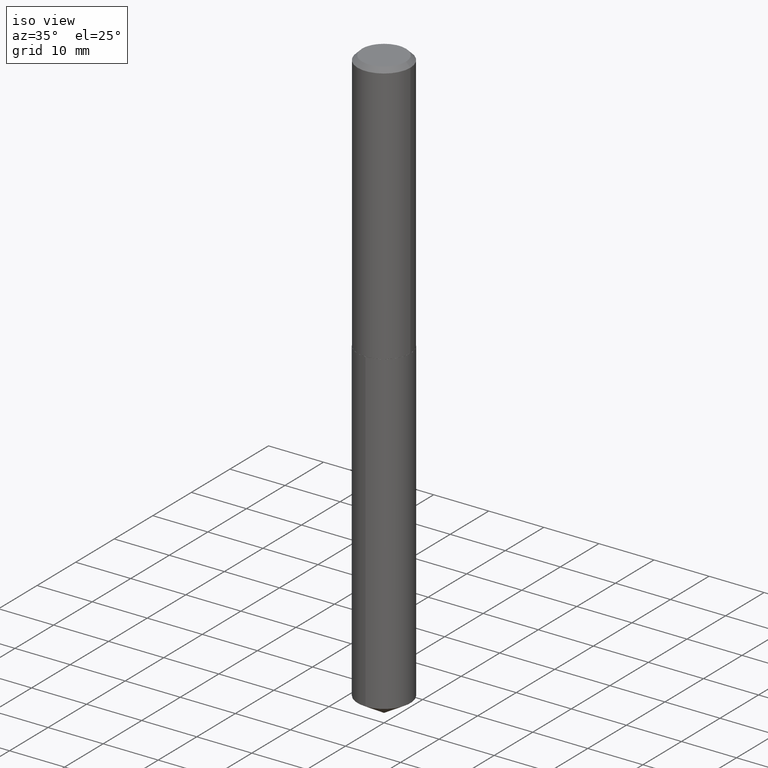
[diagram: clean part render]
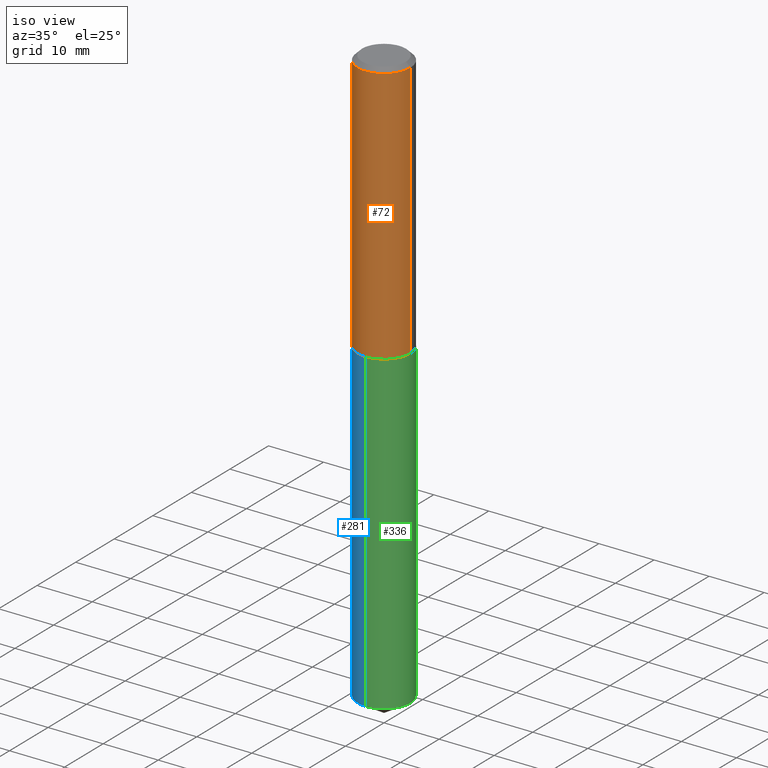
[diagram: same view with three faces highlighted in distinct colors, each labeled with its STEP entity id]
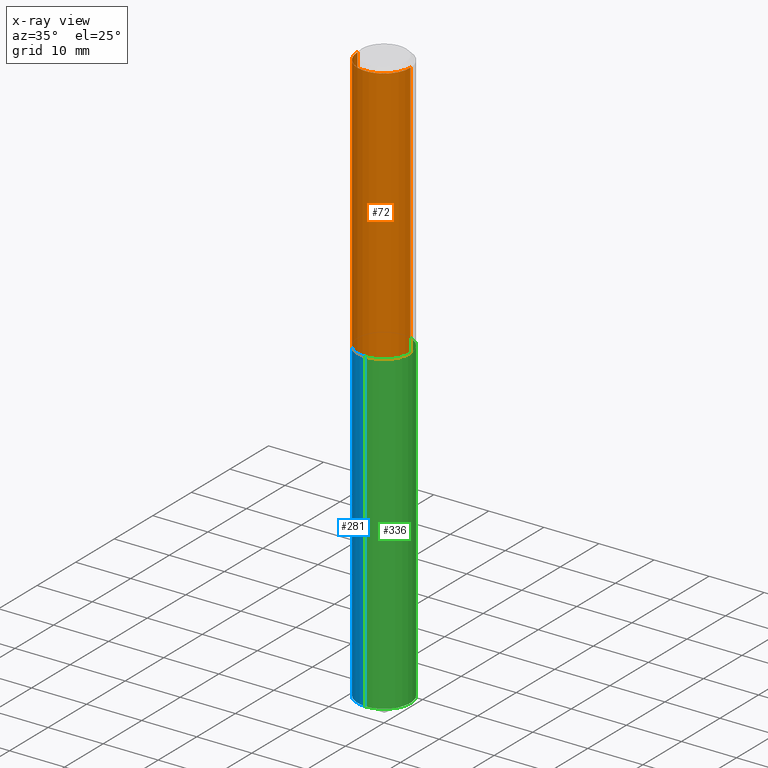
[diagram: x-ray of the same camera — body ghosted, the three highlighted faces saturated]
A machine part, iso view with three faces highlighted in distinct colors.
The next image is the same camera in x-ray (body ghosted, the three faces saturated) — at least one of them is partly hidden behind the body in this view.
Their STEP definitions:

[orange] entity #72 — the highlighted cylindrical surface (edge-blend (fillet) strip) has radius 4.7879 mm, axis along (-0, 0, 1).
#20 = DIRECTION ( 'NONE',  ( 1.000000000000000000, -6.982962677686266711E-15, 0.000000000000000000 ) ) ;
#25 = CARTESIAN_POINT ( 'NONE',  ( -0.1885000000000002784, -5.212391675431369628E-15, -1.876499999999999613 ) ) ;
#36 = DIRECTION ( 'NONE',  ( -2.445468806185136597E-29, 3.491481338843145583E-15, 1.000000000000000000 ) ) ;
#46 = ORIENTED_EDGE ( 'NONE', *, *, #131, .T. ) ;
#49 = CIRCLE ( 'NONE', #189, 0.1885000000000002784 ) ;
#67 = CIRCLE ( 'NONE', #268, 0.1885000000000000286 ) ;
#68 = VECTOR ( 'NONE', #260, 39.37007874015748143 ) ;
#72 = ADVANCED_FACE ( 'NONE', ( #104 ), #106, .T. ) ;
#78 = CARTESIAN_POINT ( 'NONE',  ( -0.1885000000000001674, 1.339373056907790040E-15, -9.272192645130504778E-30 ) ) ;
#85 = VECTOR ( 'NONE', #315, 39.37007874015748143 ) ;
#104 = FACE_OUTER_BOUND ( 'NONE', #350, .T. ) ;
#106 = CYLINDRICAL_SURFACE ( 'NONE', #368, 0.1885000000000001674 ) ;
#131 = EDGE_CURVE ( 'NONE', #316, #142, #49, .T. ) ;
#132 = CARTESIAN_POINT ( 'NONE',  ( 0.1885000000000002784, -7.868053197083025029E-15, -1.876499999999999613 ) ) ;
#135 = CARTESIAN_POINT ( 'NONE',  ( 4.588922214806407281E-29, -6.551764732339160851E-15, -1.876499999999999613 ) ) ;
#142 = VERTEX_POINT ( 'NONE', #132 ) ;
#153 = DIRECTION ( 'NONE',  ( 1.000000000000000000, -6.982962677686266711E-15, 4.876176775795935232E-29 ) ) ;
#158 = DIRECTION ( 'NONE',  ( 1.000000000000000000, -6.982962677686268288E-15, 0.000000000000000000 ) ) ;
#163 = CARTESIAN_POINT ( 'NONE',  ( 7.642090019328610544E-31, -1.091087918388491376E-16, -0.03125000000000023592 ) ) ;
#165 = CARTESIAN_POINT ( 'NONE',  ( 0.1885000000000000286, -1.425397256582710518E-15, -0.03125000000000023592 ) ) ;
#187 = EDGE_CURVE ( 'NONE', #333, #246, #67, .T. ) ;
#189 = AXIS2_PLACEMENT_3D ( 'NONE', #135, #36, #158 ) ;
#194 = CARTESIAN_POINT ( 'NONE',  ( 0.1885000000000001674, -1.316288464743862403E-15, 9.191593222375346424E-30 ) ) ;
#198 = LINE ( 'NONE', #194, #85 ) ;
#205 = EDGE_CURVE ( 'NONE', #142, #246, #198, .T. ) ;
#212 = DIRECTION ( 'NONE',  ( -2.445468806185136597E-29, 3.491481338843145583E-15, 1.000000000000000000 ) ) ;
#218 = EDGE_CURVE ( 'NONE', #316, #333, #346, .T. ) ;
#230 = ORIENTED_EDGE ( 'NONE', *, *, #187, .F. ) ;
#246 = VERTEX_POINT ( 'NONE', #165 ) ;
#260 = DIRECTION ( 'NONE',  ( -2.445468806185136877E-29, 3.491481338843145188E-15, 1.000000000000000000 ) ) ;
#268 = AXIS2_PLACEMENT_3D ( 'NONE', #163, #348, #20 ) ;
#285 = CARTESIAN_POINT ( 'NONE',  ( 0.000000000000000000, 0.000000000000000000, 0.000000000000000000 ) ) ;
#296 = CARTESIAN_POINT ( 'NONE',  ( -0.1885000000000000286, -1.991063705181214147E-15, -0.03125000000000023592 ) ) ;
#313 = ORIENTED_EDGE ( 'NONE', *, *, #218, .F. ) ;
#315 = DIRECTION ( 'NONE',  ( -2.445468806185136877E-29, 3.491481338843145188E-15, 1.000000000000000000 ) ) ;
#316 = VERTEX_POINT ( 'NONE', #25 ) ;
#321 = ORIENTED_EDGE ( 'NONE', *, *, #205, .T. ) ;
#333 = VERTEX_POINT ( 'NONE', #296 ) ;
#346 = LINE ( 'NONE', #78, #68 ) ;
#348 = DIRECTION ( 'NONE',  ( -2.445468806185136597E-29, 3.491481338843145583E-15, 1.000000000000000000 ) ) ;
#350 = EDGE_LOOP ( 'NONE', ( #313, #46, #321, #230 ) ) ;
#368 = AXIS2_PLACEMENT_3D ( 'NONE', #285, #212, #153 ) ;

[blue] entity #281 — the highlighted cylindrical surface (edge-blend (fillet) strip) has radius 4.7879 mm, axis along (-0, 0, 1).
#2 = DIRECTION ( 'NONE',  ( -6.982962677686266711E-15, -1.000000000000000000, 2.898512460121233908E-15 ) ) ;
#4 = ORIENTED_EDGE ( 'NONE', *, *, #87, .T. ) ;
#16 = CARTESIAN_POINT ( 'NONE',  ( 4.590144949209500083E-29, -6.553510473008582355E-15, -1.876999999999999336 ) ) ;
#21 = AXIS2_PLACEMENT_3D ( 'NONE', #146, #269, #2 ) ;
#30 = AXIS2_PLACEMENT_3D ( 'NONE', #309, #40, #162 ) ;
#40 = DIRECTION ( 'NONE',  ( -2.445507844419336832E-29, 3.491425433869852673E-15, 1.000000000000000000 ) ) ;
#43 = DIRECTION ( 'NONE',  ( -2.445507844419336832E-29, 3.491425433869852673E-15, 1.000000000000000000 ) ) ;
#47 = CARTESIAN_POINT ( 'NONE',  ( 1.339373056907834611E-15, 0.1884999999999934506, -1.877000000000000002 ) ) ;
#60 = AXIS2_PLACEMENT_3D ( 'NONE', #16, #43, #339 ) ;
#63 = EDGE_CURVE ( 'NONE', #77, #108, #317, .T. ) ;
#69 = CARTESIAN_POINT ( 'NONE',  ( 1.339373056907890225E-15, 0.1884999999999934506, -1.877000000000000002 ) ) ;
#77 = VERTEX_POINT ( 'NONE', #69 ) ;
#87 = EDGE_CURVE ( 'NONE', #144, #108, #216, .T. ) ;
#108 = VERTEX_POINT ( 'NONE', #193 ) ;
#133 = VECTOR ( 'NONE', #322, 39.37007874015748143 ) ;
#144 = VERTEX_POINT ( 'NONE', #373 ) ;
#146 = CARTESIAN_POINT ( 'NONE',  ( 4.590144949209500083E-29, -6.553510473008582355E-15, -1.876999999999999336 ) ) ;
#147 = EDGE_CURVE ( 'NONE', #221, #144, #303, .T. ) ;
#162 = DIRECTION ( 'NONE',  ( -6.982962677686266711E-15, -1.000000000000000000, 2.898512460121233908E-15 ) ) ;
#172 = ORIENTED_EDGE ( 'NONE', *, *, #63, .F. ) ;
#188 = CARTESIAN_POINT ( 'NONE',  ( -1.316288464743815466E-15, -0.1885000000000065790, -1.876999999999998892 ) ) ;
#192 = CARTESIAN_POINT ( 'NONE',  ( 1.339373056907889634E-15, 0.1884999999999855125, -4.136737773313305944 ) ) ;
#193 = CARTESIAN_POINT ( 'NONE',  ( -1.316288464743815466E-15, -0.1885000000000065790, -1.876999999999998892 ) ) ;
#206 = FACE_OUTER_BOUND ( 'NONE', #353, .T. ) ;
#209 = EDGE_CURVE ( 'NONE', #221, #77, #253, .T. ) ;
#216 = LINE ( 'NONE', #188, #331 ) ;
#221 = VERTEX_POINT ( 'NONE', #192 ) ;
#253 = LINE ( 'NONE', #47, #133 ) ;
#258 = ORIENTED_EDGE ( 'NONE', *, *, #147, .T. ) ;
#269 = DIRECTION ( 'NONE',  ( -2.445507844419336832E-29, 3.491425433869852673E-15, 1.000000000000000000 ) ) ;
#281 = ADVANCED_FACE ( 'NONE', ( #206 ), #298, .T. ) ;
#286 = DIRECTION ( 'NONE',  ( -2.445507844419337112E-29, 3.491425433869852673E-15, 1.000000000000000000 ) ) ;
#295 = ORIENTED_EDGE ( 'NONE', *, *, #209, .F. ) ;
#298 = CYLINDRICAL_SURFACE ( 'NONE', #21, 0.1885000000000000286 ) ;
#303 = CIRCLE ( 'NONE', #30, 0.1885000000000000286 ) ;
#309 = CARTESIAN_POINT ( 'NONE',  ( 1.011635140017787534E-28, -1.444321640863108601E-14, -4.136737773313305944 ) ) ;
#317 = CIRCLE ( 'NONE', #60, 0.1885000000000000286 ) ;
#322 = DIRECTION ( 'NONE',  ( -2.445507844419337112E-29, 3.491425433869852673E-15, 1.000000000000000000 ) ) ;
#331 = VECTOR ( 'NONE', #286, 39.37007874015748143 ) ;
#339 = DIRECTION ( 'NONE',  ( -6.982962677686266711E-15, -1.000000000000000000, 2.898512460121233908E-15 ) ) ;
#353 = EDGE_LOOP ( 'NONE', ( #295, #258, #4, #172 ) ) ;
#373 = CARTESIAN_POINT ( 'NONE',  ( -1.316288464743759851E-15, -0.1885000000000144338, -4.136737773313305055 ) ) ;

[green] entity #336 — the highlighted cylindrical surface (edge-blend (fillet) strip) has radius 4.7879 mm, axis along (-0, 0, 1).
#10 = CARTESIAN_POINT ( 'NONE',  ( 1.011635140017787534E-28, -1.444321640863108601E-14, -4.136737773313305944 ) ) ;
#15 = CIRCLE ( 'NONE', #345, 0.1885000000000000286 ) ;
#28 = CARTESIAN_POINT ( 'NONE',  ( 4.590144949209500083E-29, -6.553510473008582355E-15, -1.876999999999999336 ) ) ;
#47 = CARTESIAN_POINT ( 'NONE',  ( 1.339373056907834611E-15, 0.1884999999999934506, -1.877000000000000002 ) ) ;
#57 = CYLINDRICAL_SURFACE ( 'NONE', #161, 0.1885000000000000286 ) ;
#62 = CARTESIAN_POINT ( 'NONE',  ( 4.590144949209500083E-29, -6.553510473008582355E-15, -1.876999999999999336 ) ) ;
#69 = CARTESIAN_POINT ( 'NONE',  ( 1.339373056907890225E-15, 0.1884999999999934506, -1.877000000000000002 ) ) ;
#77 = VERTEX_POINT ( 'NONE', #69 ) ;
#83 = ORIENTED_EDGE ( 'NONE', *, *, #299, .F. ) ;
#87 = EDGE_CURVE ( 'NONE', #144, #108, #216, .T. ) ;
#88 = DIRECTION ( 'NONE',  ( -6.982962677686266711E-15, -1.000000000000000000, 2.898512460121233908E-15 ) ) ;
#108 = VERTEX_POINT ( 'NONE', #193 ) ;
#119 = EDGE_CURVE ( 'NONE', #144, #221, #261, .T. ) ;
#130 = DIRECTION ( 'NONE',  ( -6.982962677686266711E-15, -1.000000000000000000, 2.898512460121233908E-15 ) ) ;
#133 = VECTOR ( 'NONE', #322, 39.37007874015748143 ) ;
#144 = VERTEX_POINT ( 'NONE', #373 ) ;
#149 = DIRECTION ( 'NONE',  ( -2.445507844419336832E-29, 3.491425433869852673E-15, 1.000000000000000000 ) ) ;
#161 = AXIS2_PLACEMENT_3D ( 'NONE', #28, #149, #88 ) ;
#188 = CARTESIAN_POINT ( 'NONE',  ( -1.316288464743815466E-15, -0.1885000000000065790, -1.876999999999998892 ) ) ;
#192 = CARTESIAN_POINT ( 'NONE',  ( 1.339373056907889634E-15, 0.1884999999999855125, -4.136737773313305944 ) ) ;
#193 = CARTESIAN_POINT ( 'NONE',  ( -1.316288464743815466E-15, -0.1885000000000065790, -1.876999999999998892 ) ) ;
#209 = EDGE_CURVE ( 'NONE', #221, #77, #253, .T. ) ;
#216 = LINE ( 'NONE', #188, #331 ) ;
#221 = VERTEX_POINT ( 'NONE', #192 ) ;
#229 = DIRECTION ( 'NONE',  ( -6.982962677686266711E-15, -1.000000000000000000, 2.898512460121233908E-15 ) ) ;
#239 = AXIS2_PLACEMENT_3D ( 'NONE', #10, #374, #130 ) ;
#253 = LINE ( 'NONE', #47, #133 ) ;
#261 = CIRCLE ( 'NONE', #239, 0.1885000000000000286 ) ;
#262 = EDGE_LOOP ( 'NONE', ( #364, #328, #83, #291 ) ) ;
#286 = DIRECTION ( 'NONE',  ( -2.445507844419337112E-29, 3.491425433869852673E-15, 1.000000000000000000 ) ) ;
#291 = ORIENTED_EDGE ( 'NONE', *, *, #87, .F. ) ;
#299 = EDGE_CURVE ( 'NONE', #108, #77, #15, .T. ) ;
#322 = DIRECTION ( 'NONE',  ( -2.445507844419337112E-29, 3.491425433869852673E-15, 1.000000000000000000 ) ) ;
#326 = DIRECTION ( 'NONE',  ( -2.445507844419336832E-29, 3.491425433869852673E-15, 1.000000000000000000 ) ) ;
#328 = ORIENTED_EDGE ( 'NONE', *, *, #209, .T. ) ;
#331 = VECTOR ( 'NONE', #286, 39.37007874015748143 ) ;
#336 = ADVANCED_FACE ( 'NONE', ( #356 ), #57, .T. ) ;
#345 = AXIS2_PLACEMENT_3D ( 'NONE', #62, #326, #229 ) ;
#356 = FACE_OUTER_BOUND ( 'NONE', #262, .T. ) ;
#364 = ORIENTED_EDGE ( 'NONE', *, *, #119, .T. ) ;
#373 = CARTESIAN_POINT ( 'NONE',  ( -1.316288464743759851E-15, -0.1885000000000144338, -4.136737773313305055 ) ) ;
#374 = DIRECTION ( 'NONE',  ( -2.445507844419336832E-29, 3.491425433869852673E-15, 1.000000000000000000 ) ) ;